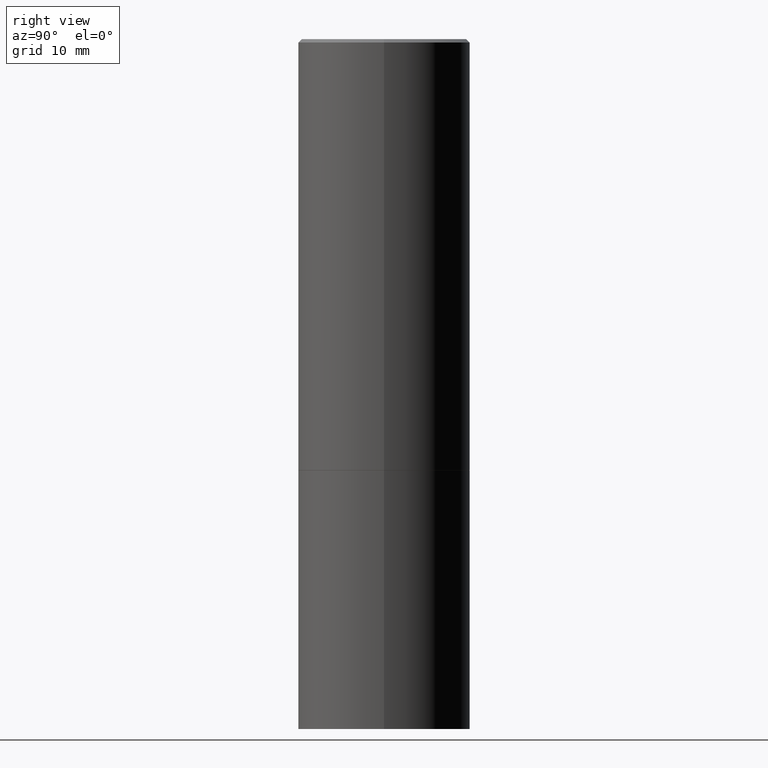
[diagram: clean part render]
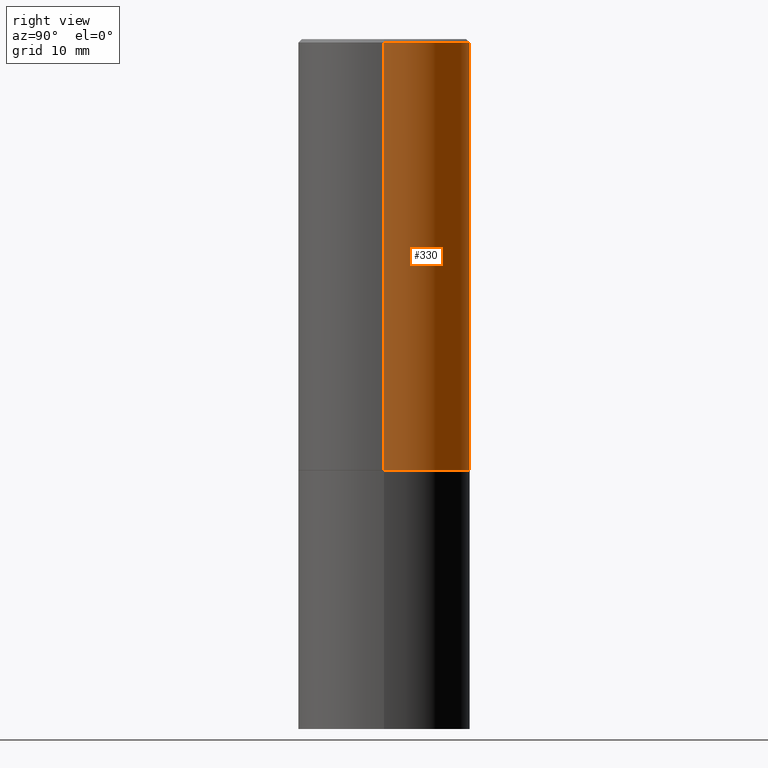
[diagram: same view with one face highlighted and labeled with its STEP entity id]
A machine part, right view. The second image highlights one B-rep face of the part: STEP entity #330.
In plain terms, the highlighted cylindrical surface (partial cylindrical patch) has radius 12.7 mm, axis along (-0, 0, 1).
Its self-contained STEP definition (entity closure, byte-faithful):
#4 = CIRCLE ( 'NONE', #192, 0.5000000000000000000 ) ;
#10 = EDGE_CURVE ( 'NONE', #282, #138, #4, .T. ) ;
#16 = CYLINDRICAL_SURFACE ( 'NONE', #99, 0.4999999999999998335 ) ;
#21 = DIRECTION ( 'NONE',  ( -2.445468806185136877E-29, 3.491481338843145188E-15, 1.000000000000000000 ) ) ;
#25 = EDGE_CURVE ( 'NONE', #138, #194, #304, .T. ) ;
#34 = CIRCLE ( 'NONE', #61, 0.4999999999999997224 ) ;
#40 = ORIENTED_EDGE ( 'NONE', *, *, #10, .T. ) ;
#41 = EDGE_CURVE ( 'NONE', #282, #163, #127, .T. ) ;
#61 = AXIS2_PLACEMENT_3D ( 'NONE', #298, #186, #238 ) ;
#99 = AXIS2_PLACEMENT_3D ( 'NONE', #122, #182, #268 ) ;
#107 = CARTESIAN_POINT ( 'NONE',  ( -0.4999999999999997224, 3.421651712066268085E-15, -0.02000000000000010797 ) ) ;
#122 = CARTESIAN_POINT ( 'NONE',  ( 0.000000000000000000, 0.000000000000000000, 0.000000000000000000 ) ) ;
#127 = LINE ( 'NONE', #280, #134 ) ;
#134 = VECTOR ( 'NONE', #170, 39.37007874015748143 ) ;
#138 = VERTEX_POINT ( 'NONE', #206 ) ;
#162 = EDGE_LOOP ( 'NONE', ( #40, #274, #358, #337 ) ) ;
#163 = VERTEX_POINT ( 'NONE', #181 ) ;
#170 = DIRECTION ( 'NONE',  ( -2.445468806185136877E-29, 3.491481338843145188E-15, 1.000000000000000000 ) ) ;
#181 = CARTESIAN_POINT ( 'NONE',  ( 0.4999999999999997224, -3.500078625662627502E-15, -0.02000000000000010797 ) ) ;
#182 = DIRECTION ( 'NONE',  ( -2.445468806185136597E-29, 3.491481338843145583E-15, 1.000000000000000000 ) ) ;
#186 = DIRECTION ( 'NONE',  ( -2.445468806185136597E-29, 3.491481338843145583E-15, 1.000000000000000000 ) ) ;
#192 = AXIS2_PLACEMENT_3D ( 'NONE', #218, #224, #303 ) ;
#194 = VERTEX_POINT ( 'NONE', #107 ) ;
#206 = CARTESIAN_POINT ( 'NONE',  ( -0.5000000000000000000, -8.448070674724411945E-16, -2.499000000000000110 ) ) ;
#218 = CARTESIAN_POINT ( 'NONE',  ( 6.111226546656657010E-29, -8.725211865769021935E-15, -2.499000000000000110 ) ) ;
#224 = DIRECTION ( 'NONE',  ( -2.445468806185136597E-29, 3.491481338843145583E-15, 1.000000000000000000 ) ) ;
#238 = DIRECTION ( 'NONE',  ( 1.000000000000000000, -6.982962677686266711E-15, 0.000000000000000000 ) ) ;
#239 = CARTESIAN_POINT ( 'NONE',  ( 0.5000000000000000000, -1.221669320461215371E-14, -2.499000000000000110 ) ) ;
#247 = CARTESIAN_POINT ( 'NONE',  ( -0.4999999999999998335, 3.552713678800499746E-15, -2.459467545127452330E-29 ) ) ;
#263 = EDGE_CURVE ( 'NONE', #163, #194, #34, .T. ) ;
#265 = VECTOR ( 'NONE', #21, 39.37007874015748143 ) ;
#268 = DIRECTION ( 'NONE',  ( 1.000000000000000000, -6.982962677686267499E-15, 4.876176775795936353E-29 ) ) ;
#274 = ORIENTED_EDGE ( 'NONE', *, *, #25, .T. ) ;
#280 = CARTESIAN_POINT ( 'NONE',  ( 0.4999999999999998335, -3.491481338843132566E-15, 2.438088387897967336E-29 ) ) ;
#282 = VERTEX_POINT ( 'NONE', #239 ) ;
#298 = CARTESIAN_POINT ( 'NONE',  ( 4.890937612370299433E-31, -6.982962677686328587E-17, -0.02000000000000010797 ) ) ;
#303 = DIRECTION ( 'NONE',  ( 1.000000000000000000, -6.982962677686265133E-15, 0.000000000000000000 ) ) ;
#304 = LINE ( 'NONE', #247, #265 ) ;
#330 = ADVANCED_FACE ( 'NONE', ( #332 ), #16, .T. ) ;
#332 = FACE_OUTER_BOUND ( 'NONE', #162, .T. ) ;
#337 = ORIENTED_EDGE ( 'NONE', *, *, #41, .F. ) ;
#358 = ORIENTED_EDGE ( 'NONE', *, *, #263, .F. ) ;